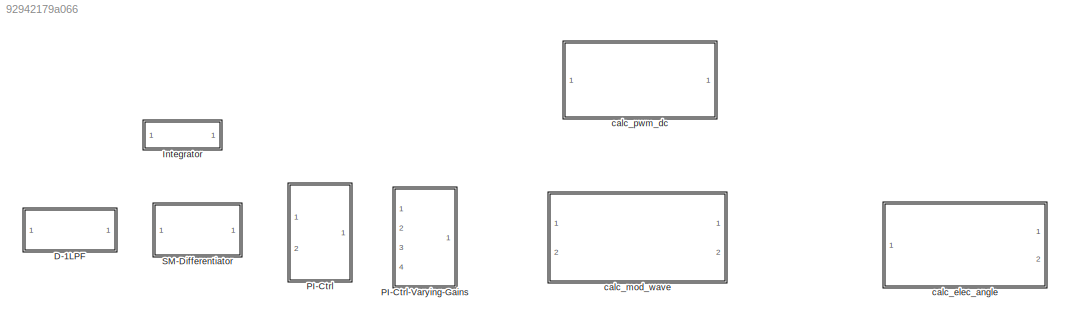
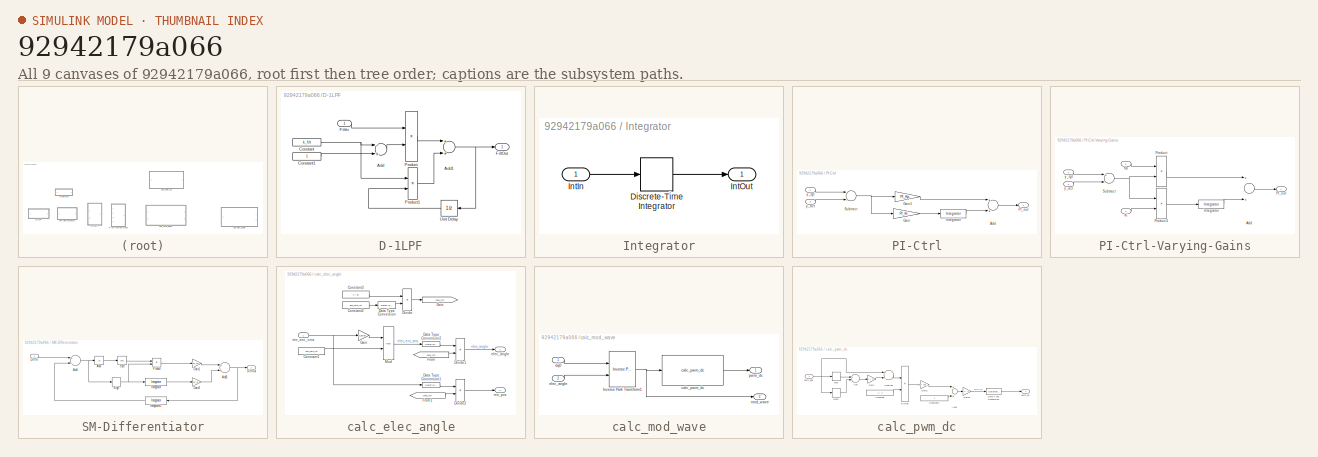
[diagram: thumbnail index - all 9 canvases of the model, root first then tree order]
MODEL slx_92942179a066
KIND library
CONFIG AbsTol = auto
CONFIG EnableMultiTasking = off
CONFIG FixedStep = auto
CONFIG MaxStep = auto
CONFIG MinStep = auto
CONFIG RelTol = 1e-3
CONFIG SampleTimeConstraint = Unconstrained
CONFIG Solver = VariableStepAuto
CONFIG SolverName = VariableStepAuto
CONFIG StartTime = 0.0
CONFIG StopTime = 10.0
BLOCK [SubSystem] D-1LPF
  Ports = [1, 1]
  RequestExecContextInheritance = off
BLOCK [Sum] D-1LPF/Add
  AccumDataTypeStr = Inherit: Same as first input
  InputSameDT = off
  Inputs = -+
  OutDataTypeStr = Inherit: Inherit via internal rule
  Ports = [2, 1]
  SaturateOnIntegerOverflow = off
BLOCK [Sum] D-1LPF/Add1
  InputSameDT = off
  OutDataTypeStr = Inherit: Inherit via internal rule
  Ports = [2, 1]
  SaturateOnIntegerOverflow = off
BLOCK [Constant] D-1LPF/Constant
  OutDataTypeStr = Inherit: Inherit via back propagation
  Value = k_filt
BLOCK [Constant] D-1LPF/Constant1
  OutDataTypeStr = Inherit: Inherit via back propagation
BLOCK [Inport] D-1LPF/FiltIn
  IconDisplay = Port number
BLOCK [Outport] D-1LPF/FiltOut
  IconDisplay = Port number
BLOCK [Product] D-1LPF/Product
  InputSameDT = off
  Ports = [2, 1]
  RndMeth = Floor
  SaturateOnIntegerOverflow = off
BLOCK [Product] D-1LPF/Product1
  InputSameDT = off
  Ports = [2, 1]
  RndMeth = Floor
  SaturateOnIntegerOverflow = off
BLOCK [UnitDelay] D-1LPF/Unit Delay
  InputProcessing = Elements as channels (sample based)
  SampleTime = -1
BLOCK [SubSystem] Integrator
  Ports = [1, 1]
  RequestExecContextInheritance = off
  SystemSampleTime = ts
BLOCK [DiscreteIntegrator] Integrator/Discrete-Time Integrator
  ICPrevOutput = DiscIntNeverNeededParam
  ICPrevScaledInput = DiscIntNeverNeededParam
  InitialConditionSetting = Auto
  IntegratorMethod = Accumulation: Forward Euler
  LimitOutput = on
  LowerSaturationLimit = min_lim
  Ports = [1, 1]
  SampleTime = -1
  UpperSaturationLimit = max_lim
  gainval = ts
BLOCK [Inport] Integrator/IntIn
  IconDisplay = Port number
BLOCK [Outport] Integrator/IntOut
  IconDisplay = Port number
BLOCK [SubSystem] PI-Ctrl
  Ports = [2, 1]
  RequestExecContextInheritance = off
  SystemSampleTime = ts
BLOCK [SubSystem] PI-Ctrl-Varying-Gains
  Ports = [4, 1]
  RequestExecContextInheritance = off
  SystemSampleTime = ts
BLOCK [Sum] PI-Ctrl-Varying-Gains/Add
  InputSameDT = off
  OutDataTypeStr = Inherit: Inherit via back propagation
  Ports = [2, 1]
  SaturateOnIntegerOverflow = off
BLOCK [Reference] PI-Ctrl-Varying-Gains/Integrator  REF=$bdroot/Integrator
  Ports = [1, 1]
  SourceBlock = $bdroot/Integrator
BLOCK [Inport] PI-Ctrl-Varying-Gains/Ki
  IconDisplay = Port number
  Port = 4
BLOCK [Inport] PI-Ctrl-Varying-Gains/Kp
  IconDisplay = Port number
  Port = 3
BLOCK [Outport] PI-Ctrl-Varying-Gains/PI_out
  IconDisplay = Port number
BLOCK [Product] PI-Ctrl-Varying-Gains/Product
  InputSameDT = off
  OutDataTypeStr = Inherit: Inherit via internal rule
  Ports = [2, 1]
  RndMeth = Floor
  SaturateOnIntegerOverflow = off
BLOCK [Product] PI-Ctrl-Varying-Gains/Product1
  InputSameDT = off
  OutDataTypeStr = Inherit: Inherit via internal rule
  Ports = [2, 1]
  RndMeth = Floor
  SaturateOnIntegerOverflow = off
BLOCK [Sum] PI-Ctrl-Varying-Gains/Subtract
  InputSameDT = off
  Inputs = +-
  OutDataTypeStr = Inherit: Inherit via internal rule
  Ports = [2, 1]
  SaturateOnIntegerOverflow = off
BLOCK [Inport] PI-Ctrl-Varying-Gains/y_act
  IconDisplay = Port number
  Port = 2
BLOCK [Inport] PI-Ctrl-Varying-Gains/y_tgt
  IconDisplay = Port number
BLOCK [Sum] PI-Ctrl/Add
  InputSameDT = off
  OutDataTypeStr = Inherit: Inherit via back propagation
  Ports = [2, 1]
  SaturateOnIntegerOverflow = off
BLOCK [Gain] PI-Ctrl/Gain
  Gain = PI_Ki
  OutDataTypeStr = Inherit: Inherit via back propagation
  ParamDataTypeStr = Inherit: Inherit from 'Gain'
  SaturateOnIntegerOverflow = off
BLOCK [Gain] PI-Ctrl/Gain1
  Gain = PI_Kp
  OutDataTypeStr = Inherit: Inherit via back propagation
  ParamDataTypeStr = Inherit: Inherit from 'Gain'
  SaturateOnIntegerOverflow = off
BLOCK [Reference] PI-Ctrl/Integrator  REF=$bdroot/Integrator
  Ports = [1, 1]
  SourceBlock = $bdroot/Integrator
BLOCK [Outport] PI-Ctrl/PI_out
  IconDisplay = Port number
BLOCK [Sum] PI-Ctrl/Subtract
  InputSameDT = off
  Inputs = +-
  OutDataTypeStr = Inherit: Inherit via internal rule
  Ports = [2, 1]
  SaturateOnIntegerOverflow = off
BLOCK [Inport] PI-Ctrl/y_act
  IconDisplay = Port number
  Port = 2
BLOCK [Inport] PI-Ctrl/y_tgt
  IconDisplay = Port number
BLOCK [SubSystem] SM-Differentiator
  Ports = [1, 1]
  RequestExecContextInheritance = off
BLOCK [Abs] SM-Differentiator/Abs
  SaturateOnIntegerOverflow = off
BLOCK [Sum] SM-Differentiator/Add
  InputSameDT = off
  Inputs = +-
  OutDataTypeStr = Inherit: Inherit via internal rule
  Ports = [2, 1]
  SaturateOnIntegerOverflow = off
BLOCK [Sum] SM-Differentiator/Add1
  AccumDataTypeStr = Inherit: Same as first input
  InputSameDT = off
  OutDataTypeStr = Inherit: Inherit via back propagation
  Ports = [2, 1]
  SaturateOnIntegerOverflow = off
BLOCK [Inport] SM-Differentiator/DiffIn
  IconDisplay = Port number
BLOCK [Outport] SM-Differentiator/DiffOut
  IconDisplay = Port number
BLOCK [Gain] SM-Differentiator/Gain1
  Gain = sm_kp
  OutDataTypeStr = Inherit: Inherit via back propagation
  ParamDataTypeStr = Inherit: Inherit from 'Gain'
  SaturateOnIntegerOverflow = off
BLOCK [Gain] SM-Differentiator/Gain2
  Gain = sm_ki
  OutDataTypeStr = Inherit: Inherit via back propagation
  ParamDataTypeStr = Inherit: Inherit from 'Gain'
  SaturateOnIntegerOverflow = off
BLOCK [Reference] SM-Differentiator/Integrator  REF=$bdroot/Integrator
  Ports = [1, 1]
  SourceBlock = $bdroot/Integrator
BLOCK [Reference] SM-Differentiator/Integrator1  REF=$bdroot/Integrator
  Ports = [1, 1]
  SourceBlock = $bdroot/Integrator
BLOCK [Product] SM-Differentiator/Product
  InputSameDT = off
  Ports = [2, 1]
  RndMeth = Floor
  SaturateOnIntegerOverflow = off
BLOCK [Signum] SM-Differentiator/Sign
BLOCK [Sqrt] SM-Differentiator/Sqrt
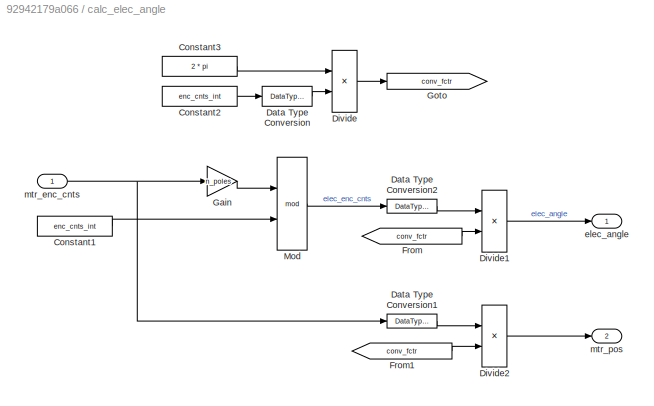
BLOCK [SubSystem] calc_elec_angle
  Ports = [1, 2]
  RTWFcnNameOpts = Use subsystem name
  RTWSystemCode = Reusable function
  RequestExecContextInheritance = off
  TreatAsAtomicUnit = on
BLOCK [Constant] calc_elec_angle/Constant1
  Value = enc_cnts_int
BLOCK [Constant] calc_elec_angle/Constant2
  Value = enc_cnts_int
BLOCK [Constant] calc_elec_angle/Constant3
  OutDataTypeStr = single
  Value = 2 * pi
BLOCK [DataTypeConversion] calc_elec_angle/Data Type Conversion
  OutDataTypeStr = single
  RndMeth = Simplest
  SaturateOnIntegerOverflow = off
BLOCK [DataTypeConversion] calc_elec_angle/Data Type Conversion1
  RndMeth = Floor
  SaturateOnIntegerOverflow = off
BLOCK [DataTypeConversion] calc_elec_angle/Data Type Conversion2
  RndMeth = Floor
  SaturateOnIntegerOverflow = off
BLOCK [Product] calc_elec_angle/Divide
  InputSameDT = off
  Inputs = */
  OutDataTypeStr = Inherit: Inherit via internal rule
  Ports = [2, 1]
  RndMeth = Floor
  SaturateOnIntegerOverflow = off
BLOCK [Product] calc_elec_angle/Divide1
  InputSameDT = off
  Inputs = **
  OutDataTypeStr = Inherit: Inherit via internal rule
  Ports = [2, 1]
  RndMeth = Floor
  SaturateOnIntegerOverflow = off
BLOCK [Product] calc_elec_angle/Divide2
  InputSameDT = off
  Inputs = **
  OutDataTypeStr = Inherit: Inherit via internal rule
  Ports = [2, 1]
  RndMeth = Floor
  SaturateOnIntegerOverflow = off
BLOCK [From] calc_elec_angle/From
  GotoTag = conv_fctr
BLOCK [From] calc_elec_angle/From1
  GotoTag = conv_fctr
BLOCK [Gain] calc_elec_angle/Gain
  AttributesFormatString = %<Gain>
  Gain = n_poles
  OutDataTypeStr = int32
  ParamDataTypeStr = int32
  SaturateOnIntegerOverflow = off
BLOCK [Goto] calc_elec_angle/Goto
  GotoTag = conv_fctr
BLOCK [Math] calc_elec_angle/Mod
  Operator = mod
  Ports = [2, 1]
BLOCK [Outport] calc_elec_angle/elec_angle
  IconDisplay = Port number
BLOCK [Inport] calc_elec_angle/mtr_enc_cnts
  IconDisplay = Port number
BLOCK [Outport] calc_elec_angle/mtr_pos
  IconDisplay = Port number
  Port = 2
BLOCK [SubSystem] calc_mod_wave
  Ports = [2, 2]
  RTWFcnNameOpts = Use subsystem name
  RTWSystemCode = Reusable function
  RequestExecContextInheritance = off
  TreatAsAtomicUnit = on
BLOCK [Reference] calc_mod_wave/Inverse Park Transform1  REF=peTransforms/Inverse
Park Transform
  Ports = [2, 1]
  SourceBlock = peTransforms/Inverse\nPark Transform
  SourceType = Inverse Park Transform
BLOCK [Reference] calc_mod_wave/calc_pwm_dc  REF=$bdroot/calc_pwm_dc
  Ports = [1, 1]
  SourceBlock = $bdroot/calc_pwm_dc
  SourceType = SubSystem
BLOCK [Inport] calc_mod_wave/dq0
  IconDisplay = Port number
BLOCK [Inport] calc_mod_wave/elec_angle
  IconDisplay = Port number
  Port = 2
BLOCK [Outport] calc_mod_wave/mod_wave
  IconDisplay = Port number
  Port = 2
BLOCK [Outport] calc_mod_wave/pwm_dc
  IconDisplay = Port number
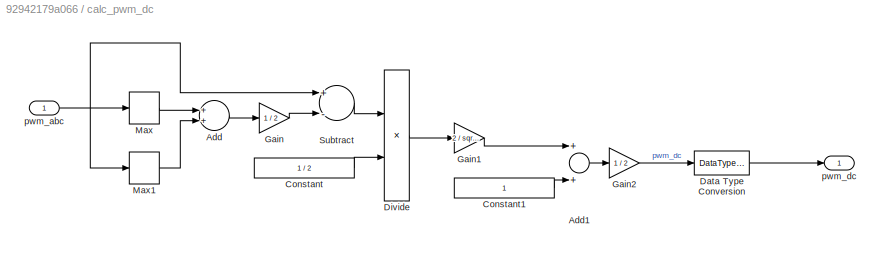
BLOCK [SubSystem] calc_pwm_dc
  Ports = [1, 1]
  RTWFcnNameOpts = Use subsystem name
  RTWSystemCode = Reusable function
  RequestExecContextInheritance = off
  TreatAsAtomicUnit = on
BLOCK [Sum] calc_pwm_dc/Add
  InputSameDT = off
  OutDataTypeStr = Inherit: Inherit via internal rule
  Ports = [2, 1]
  SaturateOnIntegerOverflow = off
BLOCK [Sum] calc_pwm_dc/Add1
  InputSameDT = off
  OutDataTypeStr = Inherit: Inherit via internal rule
  Ports = [2, 1]
  SaturateOnIntegerOverflow = off
BLOCK [Constant] calc_pwm_dc/Constant
  OutDataTypeStr = Inherit: Inherit via back propagation
  Value = 1 / 2
BLOCK [Constant] calc_pwm_dc/Constant1
  OutDataTypeStr = Inherit: Inherit via back propagation
BLOCK [DataTypeConversion] calc_pwm_dc/Data Type Conversion
  RndMeth = Floor
  SaturateOnIntegerOverflow = off
BLOCK [Product] calc_pwm_dc/Divide
  InputSameDT = off
  Inputs = */
  OutDataTypeStr = Inherit: Inherit via internal rule
  Ports = [2, 1]
  RndMeth = Floor
  SaturateOnIntegerOverflow = off
BLOCK [Gain] calc_pwm_dc/Gain
  AttributesFormatString = %<Gain>
  Gain = 1 / 2
  OutDataTypeStr = Inherit: Inherit via internal rule
  ParamDataTypeStr = Inherit: Inherit via internal rule
  SaturateOnIntegerOverflow = off
BLOCK [Gain] calc_pwm_dc/Gain1
  AttributesFormatString = %<Gain>
  Gain = 2 / sqrt(3)
  OutDataTypeStr = Inherit: Inherit via internal rule
  ParamDataTypeStr = Inherit: Inherit via internal rule
  SaturateOnIntegerOverflow = off
BLOCK [Gain] calc_pwm_dc/Gain2
  AttributesFormatString = %<Gain>
  Gain = 1 / 2
  OutDataTypeStr = Inherit: Inherit via internal rule
  ParamDataTypeStr = Inherit: Inherit via internal rule
  SaturateOnIntegerOverflow = off
BLOCK [MinMax] calc_pwm_dc/Max
  Function = max
  InputSameDT = off
  Ports = [1, 1]
  SaturateOnIntegerOverflow = off
BLOCK [MinMax] calc_pwm_dc/Max1
  InputSameDT = off
  Ports = [1, 1]
  SaturateOnIntegerOverflow = off
BLOCK [Sum] calc_pwm_dc/Subtract
  InputSameDT = off
  Inputs = +-
  OutDataTypeStr = Inherit: Inherit via internal rule
  Ports = [2, 1]
  SaturateOnIntegerOverflow = off
BLOCK [Inport] calc_pwm_dc/pwm_abc
  IconDisplay = Port number
BLOCK [Outport] calc_pwm_dc/pwm_dc
  IconDisplay = Port number
  VectorParamsAs1DForOutWhenUnconnected = on
NET D-1LPF/Add1:1 -> D-1LPF/FiltOut:1, D-1LPF/Unit Delay:1
LINE D-1LPF/Add:1 -> D-1LPF/Product:2
LINE D-1LPF/Constant1:1 -> D-1LPF/Add:2
NET D-1LPF/Constant:1 -> D-1LPF/Add:1, D-1LPF/Product1:1
LINE D-1LPF/FiltIn:1 -> D-1LPF/Product:1
LINE D-1LPF/Product1:1 -> D-1LPF/Add1:2
LINE D-1LPF/Product:1 -> D-1LPF/Add1:1
LINE D-1LPF/Unit Delay:1 -> D-1LPF/Product1:2
LINE Integrator/Discrete-Time Integrator:1 -> Integrator/IntOut:1
LINE Integrator/IntIn:1 -> Integrator/Discrete-Time Integrator:1
LINE PI-Ctrl-Varying-Gains/Add:1 -> PI-Ctrl-Varying-Gains/PI_out:1
LINE PI-Ctrl-Varying-Gains/Integrator:1 -> PI-Ctrl-Varying-Gains/Add:2
LINE PI-Ctrl-Varying-Gains/Ki:1 -> PI-Ctrl-Varying-Gains/Product1:2
LINE PI-Ctrl-Varying-Gains/Kp:1 -> PI-Ctrl-Varying-Gains/Product:1
LINE PI-Ctrl-Varying-Gains/Product1:1 -> PI-Ctrl-Varying-Gains/Integrator:1
LINE PI-Ctrl-Varying-Gains/Product:1 -> PI-Ctrl-Varying-Gains/Add:1
NET PI-Ctrl-Varying-Gains/Subtract:1 -> PI-Ctrl-Varying-Gains/Product1:1, PI-Ctrl-Varying-Gains/Product:2
LINE PI-Ctrl-Varying-Gains/y_act:1 -> PI-Ctrl-Varying-Gains/Subtract:2
LINE PI-Ctrl-Varying-Gains/y_tgt:1 -> PI-Ctrl-Varying-Gains/Subtract:1
LINE PI-Ctrl/Add:1 -> PI-Ctrl/PI_out:1
LINE PI-Ctrl/Gain1:1 -> PI-Ctrl/Add:1
LINE PI-Ctrl/Gain:1 -> PI-Ctrl/Integrator:1
LINE PI-Ctrl/Integrator:1 -> PI-Ctrl/Add:2
NET PI-Ctrl/Subtract:1 -> PI-Ctrl/Gain1:1, PI-Ctrl/Gain:1
LINE PI-Ctrl/y_act:1 -> PI-Ctrl/Subtract:2
LINE PI-Ctrl/y_tgt:1 -> PI-Ctrl/Subtract:1
LINE SM-Differentiator/Abs:1 -> SM-Differentiator/Sqrt:1
NET SM-Differentiator/Add1:1 -> SM-Differentiator/DiffOut:1, SM-Differentiator/Integrator1:1
NET SM-Differentiator/Add:1 -> SM-Differentiator/Abs:1, SM-Differentiator/Sign:1
LINE SM-Differentiator/DiffIn:1 -> SM-Differentiator/Add:1
LINE SM-Differentiator/Gain1:1 -> SM-Differentiator/Add1:1
LINE SM-Differentiator/Gain2:1 -> SM-Differentiator/Add1:2
LINE SM-Differentiator/Integrator1:1 -> SM-Differentiator/Add:2
LINE SM-Differentiator/Integrator:1 -> SM-Differentiator/Gain2:1
LINE SM-Differentiator/Product:1 -> SM-Differentiator/Gain1:1
NET SM-Differentiator/Sign:1 -> SM-Differentiator/Integrator:1, SM-Differentiator/Product:2
LINE SM-Differentiator/Sqrt:1 -> SM-Differentiator/Product:1
LINE calc_elec_angle/Constant1:1 -> calc_elec_angle/Mod:2
LINE calc_elec_angle/Constant2:1 -> calc_elec_angle/Data Type Conversion:1
LINE calc_elec_angle/Constant3:1 -> calc_elec_angle/Divide:1
LINE calc_elec_angle/Data Type Conversion1:1 -> calc_elec_angle/Divide2:1
LINE calc_elec_angle/Data Type Conversion2:1 -> calc_elec_angle/Divide1:1
LINE calc_elec_angle/Data Type Conversion:1 -> calc_elec_angle/Divide:2
LINE calc_elec_angle/Divide1:1 -> calc_elec_angle/elec_angle:1
LINE calc_elec_angle/Divide2:1 -> calc_elec_angle/mtr_pos:1
LINE calc_elec_angle/Divide:1 -> calc_elec_angle/Goto:1
LINE calc_elec_angle/From1:1 -> calc_elec_angle/Divide2:2
LINE calc_elec_angle/From:1 -> calc_elec_angle/Divide1:2
LINE calc_elec_angle/Gain:1 -> calc_elec_angle/Mod:1
LINE calc_elec_angle/Mod:1 -> calc_elec_angle/Data Type Conversion2:1
NET calc_elec_angle/mtr_enc_cnts:1 -> calc_elec_angle/Data Type Conversion1:1, calc_elec_angle/Gain:1
NET calc_mod_wave/Inverse Park Transform1:1 -> calc_mod_wave/calc_pwm_dc:1, calc_mod_wave/mod_wave:1
LINE calc_mod_wave/calc_pwm_dc:1 -> calc_mod_wave/pwm_dc:1
LINE calc_mod_wave/dq0:1 -> calc_mod_wave/Inverse Park Transform1:1
LINE calc_mod_wave/elec_angle:1 -> calc_mod_wave/Inverse Park Transform1:2
LINE calc_pwm_dc/Add1:1 -> calc_pwm_dc/Gain2:1
LINE calc_pwm_dc/Add:1 -> calc_pwm_dc/Gain:1
LINE calc_pwm_dc/Constant1:1 -> calc_pwm_dc/Add1:2
LINE calc_pwm_dc/Constant:1 -> calc_pwm_dc/Divide:2
LINE calc_pwm_dc/Data Type Conversion:1 -> calc_pwm_dc/pwm_dc:1
LINE calc_pwm_dc/Divide:1 -> calc_pwm_dc/Gain1:1
LINE calc_pwm_dc/Gain1:1 -> calc_pwm_dc/Add1:1
LINE calc_pwm_dc/Gain2:1 -> calc_pwm_dc/Data Type Conversion:1
LINE calc_pwm_dc/Gain:1 -> calc_pwm_dc/Subtract:2
LINE calc_pwm_dc/Max1:1 -> calc_pwm_dc/Add:2
LINE calc_pwm_dc/Max:1 -> calc_pwm_dc/Add:1
LINE calc_pwm_dc/Subtract:1 -> calc_pwm_dc/Divide:1
NET calc_pwm_dc/pwm_abc:1 -> calc_pwm_dc/Max1:1, calc_pwm_dc/Max:1, calc_pwm_dc/Subtract:1
note: NET lines group one-source signal fan-out (src -> all destinations, sorted); 1:1 wires keep LINE
